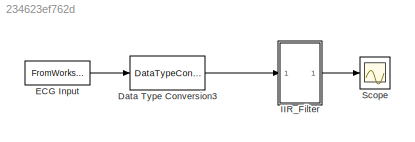
MODEL slx_234623ef762d
KIND model
CONFIG AbsTol = auto
CONFIG EnableMultiTasking = off
CONFIG FixedStep = auto
CONFIG MaxStep = auto
CONFIG MinStep = auto
CONFIG RelTol = 1e-3
CONFIG SampleTimeConstraint = Unconstrained
CONFIG SolverName = FixedStepAuto
CONFIG StartTime = 0.0
CONFIG StopTime = 5
BLOCK [DataTypeConversion] Data Type Conversion3
  OutDataTypeStr = fixdt(1,24,22)
  RndMeth = Round
BLOCK [FromWorkspace] ECG Input
  SampleTime = 0.002
  VariableName = ecg_in
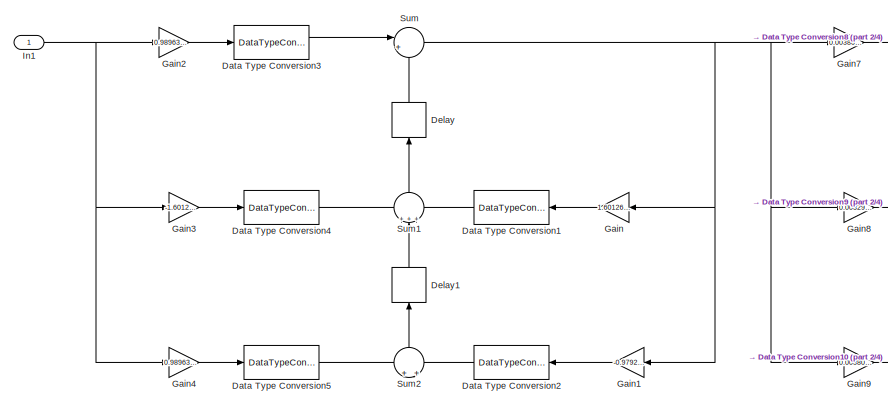
[diagram: IIR_Filter - part 1/4, left side, full height]
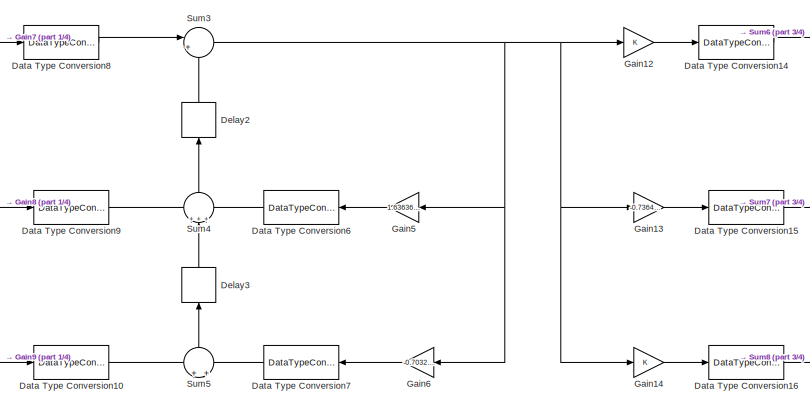
[diagram: IIR_Filter - part 2/4, center side, full height]
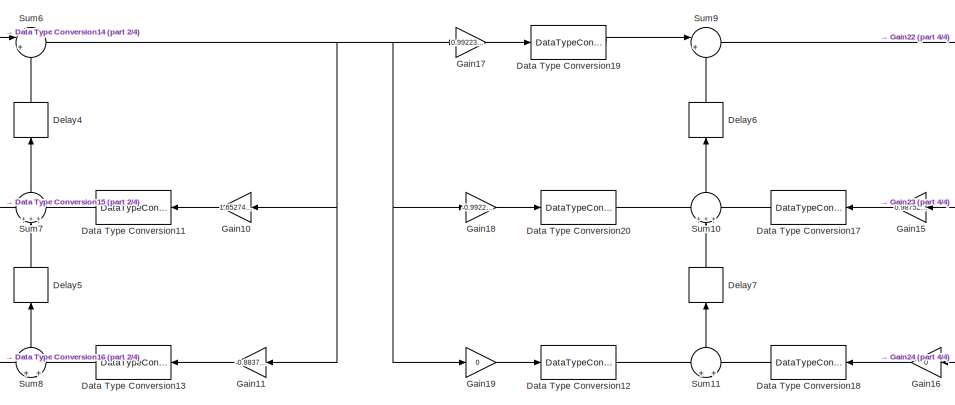
[diagram: IIR_Filter - part 3/4, center side, full height]
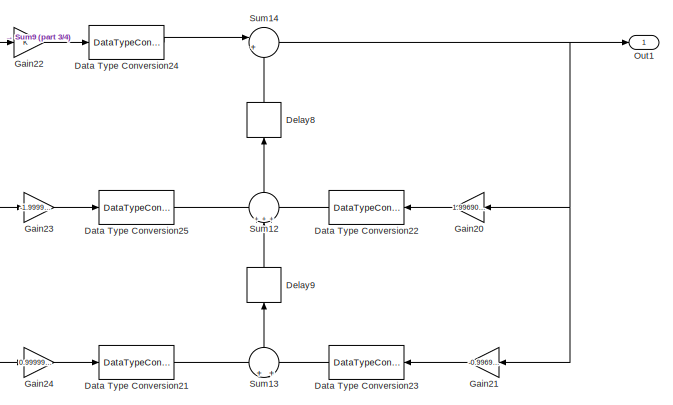
[diagram: IIR_Filter - part 4/4, right side, full height]
BLOCK [SubSystem] IIR_Filter
BLOCK [DataTypeConversion] IIR_Filter/Data Type Conversion1
  NameLocation = top
  OutDataTypeStr = fixdt(1,24,22)
  RndMeth = Round
BLOCK [DataTypeConversion] IIR_Filter/Data Type Conversion10
  OutDataTypeStr = fixdt(1,24,22)
  RndMeth = Round
BLOCK [DataTypeConversion] IIR_Filter/Data Type Conversion11
  NameLocation = top
  OutDataTypeStr = fixdt(1,24,22)
  RndMeth = Round
BLOCK [DataTypeConversion] IIR_Filter/Data Type Conversion12
  OutDataTypeStr = fixdt(1,24,22)
  RndMeth = Round
BLOCK [DataTypeConversion] IIR_Filter/Data Type Conversion13
  NameLocation = top
  OutDataTypeStr = fixdt(1,24,22)
  RndMeth = Round
BLOCK [DataTypeConversion] IIR_Filter/Data Type Conversion14
  OutDataTypeStr = fixdt(1,24,22)
  RndMeth = Round
BLOCK [DataTypeConversion] IIR_Filter/Data Type Conversion15
  OutDataTypeStr = fixdt(1,24,22)
  RndMeth = Round
BLOCK [DataTypeConversion] IIR_Filter/Data Type Conversion16
  OutDataTypeStr = fixdt(1,24,22)
  RndMeth = Round
BLOCK [DataTypeConversion] IIR_Filter/Data Type Conversion17
  NameLocation = top
  OutDataTypeStr = fixdt(1,24,22)
  RndMeth = Round
BLOCK [DataTypeConversion] IIR_Filter/Data Type Conversion18
  NameLocation = top
  OutDataTypeStr = fixdt(1,24,22)
  RndMeth = Round
BLOCK [DataTypeConversion] IIR_Filter/Data Type Conversion19
  OutDataTypeStr = fixdt(1,24,22)
  RndMeth = Round
BLOCK [DataTypeConversion] IIR_Filter/Data Type Conversion2
  NameLocation = top
  OutDataTypeStr = fixdt(1,24,22)
  RndMeth = Round
BLOCK [DataTypeConversion] IIR_Filter/Data Type Conversion20
  OutDataTypeStr = fixdt(1,24,22)
  RndMeth = Round
BLOCK [DataTypeConversion] IIR_Filter/Data Type Conversion21
  OutDataTypeStr = fixdt(1,24,22)
  RndMeth = Round
BLOCK [DataTypeConversion] IIR_Filter/Data Type Conversion22
  NameLocation = top
  OutDataTypeStr = fixdt(1,24,22)
  RndMeth = Round
BLOCK [DataTypeConversion] IIR_Filter/Data Type Conversion23
  NameLocation = top
  OutDataTypeStr = fixdt(1,24,22)
  RndMeth = Round
BLOCK [DataTypeConversion] IIR_Filter/Data Type Conversion24
  OutDataTypeStr = fixdt(1,24,22)
  RndMeth = Round
BLOCK [DataTypeConversion] IIR_Filter/Data Type Conversion25
  OutDataTypeStr = fixdt(1,24,22)
  RndMeth = Round
BLOCK [DataTypeConversion] IIR_Filter/Data Type Conversion3
  OutDataTypeStr = fixdt(1,24,22)
  RndMeth = Round
BLOCK [DataTypeConversion] IIR_Filter/Data Type Conversion4
  OutDataTypeStr = fixdt(1,24,22)
  RndMeth = Round
BLOCK [DataTypeConversion] IIR_Filter/Data Type Conversion5
  OutDataTypeStr = fixdt(1,24,22)
  RndMeth = Round
BLOCK [DataTypeConversion] IIR_Filter/Data Type Conversion6
  NameLocation = top
  OutDataTypeStr = fixdt(1,24,22)
  RndMeth = Round
BLOCK [DataTypeConversion] IIR_Filter/Data Type Conversion7
  NameLocation = top
  OutDataTypeStr = fixdt(1,24,22)
  RndMeth = Round
BLOCK [DataTypeConversion] IIR_Filter/Data Type Conversion8
  OutDataTypeStr = fixdt(1,24,22)
  RndMeth = Round
BLOCK [DataTypeConversion] IIR_Filter/Data Type Conversion9
  OutDataTypeStr = fixdt(1,24,22)
  RndMeth = Round
BLOCK [Delay] IIR_Filter/Delay
  DelayLength = 1
  InitialCondition = 0
  InputPortMap = u0
  NameLocation = right
BLOCK [Delay] IIR_Filter/Delay1
  DelayLength = 1
  InitialCondition = 0
  InputPortMap = u0
  NameLocation = right
BLOCK [Delay] IIR_Filter/Delay2
  DelayLength = 1
  InitialCondition = 0
  InputPortMap = u0
  NameLocation = right
BLOCK [Delay] IIR_Filter/Delay3
  DelayLength = 1
  InitialCondition = 0
  InputPortMap = u0
  NameLocation = right
BLOCK [Delay] IIR_Filter/Delay4
  DelayLength = 1
  InitialCondition = 0
  InputPortMap = u0
  NameLocation = right
BLOCK [Delay] IIR_Filter/Delay5
  DelayLength = 1
  InitialCondition = 0
  InputPortMap = u0
  NameLocation = right
BLOCK [Delay] IIR_Filter/Delay6
  DelayLength = 1
  InitialCondition = 0
  InputPortMap = u0
  NameLocation = right
BLOCK [Delay] IIR_Filter/Delay7
  DelayLength = 1
  InitialCondition = 0
  InputPortMap = u0
  NameLocation = right
BLOCK [Delay] IIR_Filter/Delay8
  DelayLength = 1
  InitialCondition = 0
  InputPortMap = u0
  NameLocation = right
BLOCK [Delay] IIR_Filter/Delay9
  DelayLength = 1
  InitialCondition = 0
  InputPortMap = u0
  NameLocation = right
BLOCK [Gain] IIR_Filter/Gain
  Gain = 1.60126496823361
  NameLocation = top
  RndMeth = Round
  SaturateOnIntegerOverflow = on
BLOCK [Gain] IIR_Filter/Gain1
  Gain = -0.979272350725784
  NameLocation = top
BLOCK [Gain] IIR_Filter/Gain10
  Gain = 1.65274612970922
  NameLocation = top
  RndMeth = Round
  SaturateOnIntegerOverflow = on
BLOCK [Gain] IIR_Filter/Gain11
  Gain = -0.883761522523606
  NameLocation = top
BLOCK [Gain] IIR_Filter/Gain12
  RndMeth = Nearest
BLOCK [Gain] IIR_Filter/Gain13
  Gain = -0.736474584824607
  RndMeth = Round
BLOCK [Gain] IIR_Filter/Gain14
BLOCK [Gain] IIR_Filter/Gain15
  Gain = 0.987522531803426
  NameLocation = top
  RndMeth = Round
  SaturateOnIntegerOverflow = on
BLOCK [Gain] IIR_Filter/Gain16
  Gain = 0
  NameLocation = top
BLOCK [Gain] IIR_Filter/Gain17
  Gain = 0.992233350071197
  RndMeth = Nearest
BLOCK [Gain] IIR_Filter/Gain18
  Gain = -0.992233350721731
  RndMeth = Round
BLOCK [Gain] IIR_Filter/Gain19
  Gain = 0
BLOCK [Gain] IIR_Filter/Gain2
  Gain = 0.989636175362892
  RndMeth = Nearest
BLOCK [Gain] IIR_Filter/Gain20
  Gain = 1.99690462144625
  NameLocation = top
  RndMeth = Round
  SaturateOnIntegerOverflow = on
BLOCK [Gain] IIR_Filter/Gain21
  Gain = -0.996944168338961
  NameLocation = top
BLOCK [Gain] IIR_Filter/Gain22
  RndMeth = Nearest
BLOCK [Gain] IIR_Filter/Gain23
  Gain = -1.99999881904963
  RndMeth = Round
BLOCK [Gain] IIR_Filter/Gain24
  Gain = 0.999999999344374
BLOCK [Gain] IIR_Filter/Gain3
  Gain = -1.60126496823361
  RndMeth = Round
BLOCK [Gain] IIR_Filter/Gain4
  Gain = 0.989636175362892
BLOCK [Gain] IIR_Filter/Gain5
  Gain = 1.63636218845061
  NameLocation = top
  RndMeth = Round
  SaturateOnIntegerOverflow = on
BLOCK [Gain] IIR_Filter/Gain6
  Gain = -0.70328463265113
  NameLocation = top
BLOCK [Gain] IIR_Filter/Gain7
  Gain = 0.00380527489882981
  RndMeth = Nearest
BLOCK [Gain] IIR_Filter/Gain8
  Gain = 0.00329452705778762
  RndMeth = Round
BLOCK [Gain] IIR_Filter/Gain9
  Gain = 0.00380527489882981
BLOCK [Inport] IIR_Filter/In1
  OutDataTypeStr = fixdt(1,24,22)
BLOCK [Outport] IIR_Filter/Out1
  OutDataTypeStr = fixdt(1,40,30)
BLOCK [Sum] IIR_Filter/Sum
  Inputs = |++
  OutDataTypeStr = fixdt(1,40,30)
  RndMeth = Round
  SaturateOnIntegerOverflow = on
BLOCK [Sum] IIR_Filter/Sum1
  Inputs = +++
  NameLocation = right
  OutDataTypeStr = fixdt(1,40,30)
  RndMeth = Round
  SaturateOnIntegerOverflow = on
BLOCK [Sum] IIR_Filter/Sum10
  Inputs = +++
  NameLocation = right
  OutDataTypeStr = fixdt(1,40,30)
  RndMeth = Round
  SaturateOnIntegerOverflow = on
BLOCK [Sum] IIR_Filter/Sum11
  Inputs = +|+
  NameLocation = right
  OutDataTypeStr = fixdt(1,40,30)
  RndMeth = Round
  SaturateOnIntegerOverflow = on
BLOCK [Sum] IIR_Filter/Sum12
  Inputs = +++
  NameLocation = right
  OutDataTypeStr = fixdt(1,40,30)
  RndMeth = Round
  SaturateOnIntegerOverflow = on
BLOCK [Sum] IIR_Filter/Sum13
  Inputs = +|+
  NameLocation = right
  OutDataTypeStr = fixdt(1,40,30)
  RndMeth = Round
  SaturateOnIntegerOverflow = on
BLOCK [Sum] IIR_Filter/Sum14
  Inputs = |++
  OutDataTypeStr = fixdt(1,40,30)
  RndMeth = Round
  SaturateOnIntegerOverflow = on
BLOCK [Sum] IIR_Filter/Sum2
  Inputs = +|+
  NameLocation = right
  OutDataTypeStr = fixdt(1,40,30)
  RndMeth = Round
  SaturateOnIntegerOverflow = on
BLOCK [Sum] IIR_Filter/Sum3
  Inputs = |++
  OutDataTypeStr = fixdt(1,40,30)
  RndMeth = Round
  SaturateOnIntegerOverflow = on
BLOCK [Sum] IIR_Filter/Sum4
  Inputs = +++
  NameLocation = right
  OutDataTypeStr = fixdt(1,40,30)
  RndMeth = Round
  SaturateOnIntegerOverflow = on
BLOCK [Sum] IIR_Filter/Sum5
  Inputs = +|+
  NameLocation = right
  OutDataTypeStr = fixdt(1,40,30)
  RndMeth = Round
  SaturateOnIntegerOverflow = on
BLOCK [Sum] IIR_Filter/Sum6
  Inputs = |++
  OutDataTypeStr = fixdt(1,40,30)
  RndMeth = Round
  SaturateOnIntegerOverflow = on
BLOCK [Sum] IIR_Filter/Sum7
  Inputs = +++
  NameLocation = right
  OutDataTypeStr = fixdt(1,40,30)
  RndMeth = Round
  SaturateOnIntegerOverflow = on
BLOCK [Sum] IIR_Filter/Sum8
  Inputs = +|+
  NameLocation = right
  OutDataTypeStr = fixdt(1,40,30)
  RndMeth = Round
  SaturateOnIntegerOverflow = on
BLOCK [Sum] IIR_Filter/Sum9
  Inputs = |++
  OutDataTypeStr = fixdt(1,40,30)
  RndMeth = Round
  SaturateOnIntegerOverflow = on
BLOCK [Scope] Scope
  Floating = off
  NumInputPorts = 1
  ScopeSpecificationString = Simulink.scopes.TimeScopeBlockCfg('CurrentConfiguration', extmgr.ConfigurationSet(extmgr.Configuration('Core','General UI',true),extmgr.Configuration('Core','Source UI',true),extmgr.Configuration('Sources','WiredSimulink',true),extmgr.Configuration('Visuals','Time Domain',true,'SerializedDisplays',{struct('MinYLimReal','-0.4103','MaxYLimReal','0.81121','YLabelReal','','MinYLimMag','0.00000','MaxYL...<+1357ch>
LINE Data Type Conversion3:1 -> IIR_Filter:1
LINE ECG Input:1 -> Data Type Conversion3:1
LINE IIR_Filter/Data Type Conversion10:1 -> IIR_Filter/Sum5:1
LINE IIR_Filter/Data Type Conversion11:1 -> IIR_Filter/Sum7:3
LINE IIR_Filter/Data Type Conversion12:1 -> IIR_Filter/Sum11:1
LINE IIR_Filter/Data Type Conversion13:1 -> IIR_Filter/Sum8:2
LINE IIR_Filter/Data Type Conversion14:1 -> IIR_Filter/Sum6:1
LINE IIR_Filter/Data Type Conversion15:1 -> IIR_Filter/Sum7:1
LINE IIR_Filter/Data Type Conversion16:1 -> IIR_Filter/Sum8:1
LINE IIR_Filter/Data Type Conversion17:1 -> IIR_Filter/Sum10:3
LINE IIR_Filter/Data Type Conversion18:1 -> IIR_Filter/Sum11:2
LINE IIR_Filter/Data Type Conversion19:1 -> IIR_Filter/Sum9:1
LINE IIR_Filter/Data Type Conversion1:1 -> IIR_Filter/Sum1:3
LINE IIR_Filter/Data Type Conversion20:1 -> IIR_Filter/Sum10:1
LINE IIR_Filter/Data Type Conversion21:1 -> IIR_Filter/Sum13:1
LINE IIR_Filter/Data Type Conversion22:1 -> IIR_Filter/Sum12:3
LINE IIR_Filter/Data Type Conversion23:1 -> IIR_Filter/Sum13:2
LINE IIR_Filter/Data Type Conversion24:1 -> IIR_Filter/Sum14:1
LINE IIR_Filter/Data Type Conversion25:1 -> IIR_Filter/Sum12:1
LINE IIR_Filter/Data Type Conversion2:1 -> IIR_Filter/Sum2:2
LINE IIR_Filter/Data Type Conversion3:1 -> IIR_Filter/Sum:1
LINE IIR_Filter/Data Type Conversion4:1 -> IIR_Filter/Sum1:1
LINE IIR_Filter/Data Type Conversion5:1 -> IIR_Filter/Sum2:1
LINE IIR_Filter/Data Type Conversion6:1 -> IIR_Filter/Sum4:3
LINE IIR_Filter/Data Type Conversion7:1 -> IIR_Filter/Sum5:2
LINE IIR_Filter/Data Type Conversion8:1 -> IIR_Filter/Sum3:1
LINE IIR_Filter/Data Type Conversion9:1 -> IIR_Filter/Sum4:1
LINE IIR_Filter/Delay1:1 -> IIR_Filter/Sum1:2
LINE IIR_Filter/Delay2:1 -> IIR_Filter/Sum3:2
LINE IIR_Filter/Delay3:1 -> IIR_Filter/Sum4:2
LINE IIR_Filter/Delay4:1 -> IIR_Filter/Sum6:2
LINE IIR_Filter/Delay5:1 -> IIR_Filter/Sum7:2
LINE IIR_Filter/Delay6:1 -> IIR_Filter/Sum9:2
LINE IIR_Filter/Delay7:1 -> IIR_Filter/Sum10:2
LINE IIR_Filter/Delay8:1 -> IIR_Filter/Sum14:2
LINE IIR_Filter/Delay9:1 -> IIR_Filter/Sum12:2
LINE IIR_Filter/Delay:1 -> IIR_Filter/Sum:2
LINE IIR_Filter/Gain10:1 -> IIR_Filter/Data Type Conversion11:1
LINE IIR_Filter/Gain11:1 -> IIR_Filter/Data Type Conversion13:1
LINE IIR_Filter/Gain12:1 -> IIR_Filter/Data Type Conversion14:1
LINE IIR_Filter/Gain13:1 -> IIR_Filter/Data Type Conversion15:1
LINE IIR_Filter/Gain14:1 -> IIR_Filter/Data Type Conversion16:1
LINE IIR_Filter/Gain15:1 -> IIR_Filter/Data Type Conversion17:1
LINE IIR_Filter/Gain16:1 -> IIR_Filter/Data Type Conversion18:1
LINE IIR_Filter/Gain17:1 -> IIR_Filter/Data Type Conversion19:1
LINE IIR_Filter/Gain18:1 -> IIR_Filter/Data Type Conversion20:1
LINE IIR_Filter/Gain19:1 -> IIR_Filter/Data Type Conversion12:1
LINE IIR_Filter/Gain1:1 -> IIR_Filter/Data Type Conversion2:1
LINE IIR_Filter/Gain20:1 -> IIR_Filter/Data Type Conversion22:1
LINE IIR_Filter/Gain21:1 -> IIR_Filter/Data Type Conversion23:1
LINE IIR_Filter/Gain22:1 -> IIR_Filter/Data Type Conversion24:1
LINE IIR_Filter/Gain23:1 -> IIR_Filter/Data Type Conversion25:1
LINE IIR_Filter/Gain24:1 -> IIR_Filter/Data Type Conversion21:1
LINE IIR_Filter/Gain2:1 -> IIR_Filter/Data Type Conversion3:1
LINE IIR_Filter/Gain3:1 -> IIR_Filter/Data Type Conversion4:1
LINE IIR_Filter/Gain4:1 -> IIR_Filter/Data Type Conversion5:1
LINE IIR_Filter/Gain5:1 -> IIR_Filter/Data Type Conversion6:1
LINE IIR_Filter/Gain6:1 -> IIR_Filter/Data Type Conversion7:1
LINE IIR_Filter/Gain7:1 -> IIR_Filter/Data Type Conversion8:1
LINE IIR_Filter/Gain8:1 -> IIR_Filter/Data Type Conversion9:1
LINE IIR_Filter/Gain9:1 -> IIR_Filter/Data Type Conversion10:1
LINE IIR_Filter/Gain:1 -> IIR_Filter/Data Type Conversion1:1
NET IIR_Filter/In1:1 -> IIR_Filter/Gain2:1, IIR_Filter/Gain3:1, IIR_Filter/Gain4:1
LINE IIR_Filter/Sum10:1 -> IIR_Filter/Delay6:1
LINE IIR_Filter/Sum11:1 -> IIR_Filter/Delay7:1
LINE IIR_Filter/Sum12:1 -> IIR_Filter/Delay8:1
LINE IIR_Filter/Sum13:1 -> IIR_Filter/Delay9:1
NET IIR_Filter/Sum14:1 -> IIR_Filter/Gain20:1, IIR_Filter/Gain21:1, IIR_Filter/Out1:1
LINE IIR_Filter/Sum1:1 -> IIR_Filter/Delay:1
LINE IIR_Filter/Sum2:1 -> IIR_Filter/Delay1:1
NET IIR_Filter/Sum3:1 -> IIR_Filter/Gain12:1, IIR_Filter/Gain13:1, IIR_Filter/Gain14:1, IIR_Filter/Gain5:1, IIR_Filter/Gain6:1
LINE IIR_Filter/Sum4:1 -> IIR_Filter/Delay2:1
LINE IIR_Filter/Sum5:1 -> IIR_Filter/Delay3:1
NET IIR_Filter/Sum6:1 -> IIR_Filter/Gain10:1, IIR_Filter/Gain11:1, IIR_Filter/Gain17:1, IIR_Filter/Gain18:1, IIR_Filter/Gain19:1
LINE IIR_Filter/Sum7:1 -> IIR_Filter/Delay4:1
LINE IIR_Filter/Sum8:1 -> IIR_Filter/Delay5:1
NET IIR_Filter/Sum9:1 -> IIR_Filter/Gain15:1, IIR_Filter/Gain16:1, IIR_Filter/Gain22:1, IIR_Filter/Gain23:1, IIR_Filter/Gain24:1
NET IIR_Filter/Sum:1 -> IIR_Filter/Gain1:1, IIR_Filter/Gain7:1, IIR_Filter/Gain8:1, IIR_Filter/Gain9:1, IIR_Filter/Gain:1
LINE IIR_Filter:1 -> Scope:1
note: NET lines group one-source signal fan-out (src -> all destinations, sorted); 1:1 wires keep LINE
